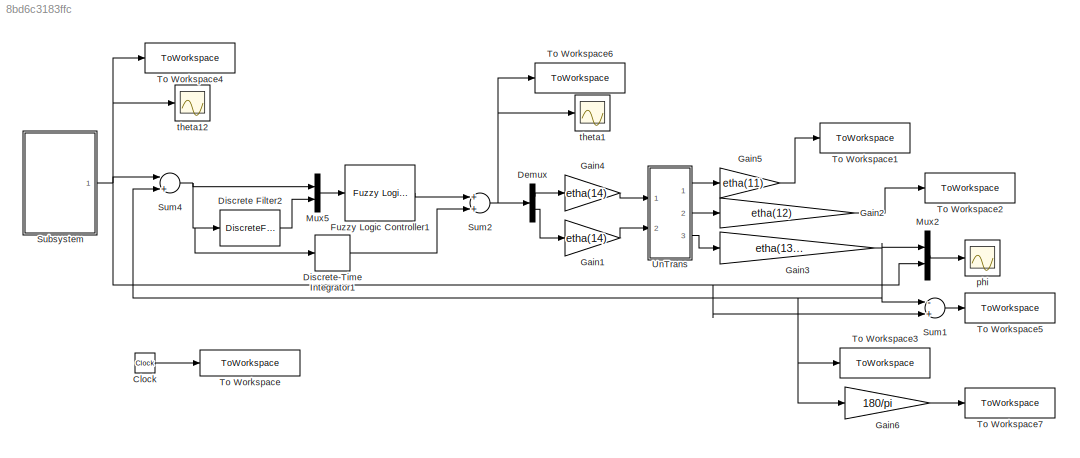
MODEL slx_8bd6c3183ffc
KIND model
CONFIG AbsTol = auto
CONFIG EnableMultiTasking = off
CONFIG FixedStep = auto
CONFIG MaxStep = auto
CONFIG MinStep = auto
CONFIG RelTol = 1e-3
CONFIG SampleTimeConstraint = Unconstrained
CONFIG Solver = VariableStepAuto
CONFIG SolverName = VariableStepAuto
CONFIG StartTime = 0.0
CONFIG StopTime = 28
BLOCK [Clock] Clock
BLOCK [Demux] Demux
  DisplayOption = bar
  Outputs = 2
  Ports = [1, 2]
BLOCK [DiscreteFilter] Discrete Filter2
  Denominator = [1 0]
  InputPortMap = u0
  Numerator = [1 -1]
  Ports = [1, 1]
BLOCK [DiscreteIntegrator] Discrete-Time Integrator1
  ICPrevOutput = DiscIntNeverNeededParam
  ICPrevScaledInput = DiscIntNeverNeededParam
  InitialConditionSetting = Auto
  Ports = [1, 1]
  SampleTime = Ts
  gainval = delta_phi(9)
BLOCK [Reference] Fuzzy Logic Controller1  REF=fuzblock/Fuzzy Logic   (lib defined in mdl_858b3b3e7478)
Controller
  Ports = [1, 1]
  SourceBlock = fuzblock/Fuzzy Logic \nController
  SourceProductBaseCode = FL
  SourceProductName = Fuzzy Logic Toolbox
  SourceType = Fuzzy Inference System
BLOCK [Gain] Gain1
  Gain = etha(14)
  OutDataTypeStr = Inherit: Inherit via internal rule
  ParamDataTypeStr = Inherit: Inherit via internal rule
  SaturateOnIntegerOverflow = off
BLOCK [Gain] Gain2
  Gain = etha(12)
  OutDataTypeStr = Inherit: Inherit via internal rule
  ParamDataTypeStr = Inherit: Inherit via internal rule
  SaturateOnIntegerOverflow = off
BLOCK [Gain] Gain3
  Gain = etha(13)*delta_phi(6)
  OutDataTypeStr = Inherit: Inherit via internal rule
  ParamDataTypeStr = Inherit: Inherit via internal rule
  SaturateOnIntegerOverflow = off
BLOCK [Gain] Gain4
  Gain = etha(14)
  OutDataTypeStr = Inherit: Inherit via internal rule
  ParamDataTypeStr = Inherit: Inherit via internal rule
  SaturateOnIntegerOverflow = off
BLOCK [Gain] Gain5
  Gain = etha(11)
  OutDataTypeStr = Inherit: Inherit via internal rule
  ParamDataTypeStr = Inherit: Inherit via internal rule
  SaturateOnIntegerOverflow = off
BLOCK [Gain] Gain6
  Gain = 180/pi
  OutDataTypeStr = Inherit: Inherit via internal rule
  ParamDataTypeStr = Inherit: Inherit via internal rule
  SaturateOnIntegerOverflow = off
BLOCK [Mux] Mux2
  DisplayOption = bar
  Inputs = 2
  Ports = [2, 1]
BLOCK [Mux] Mux5
  DisplayOption = bar
  Inputs = 2
  Ports = [2, 1]
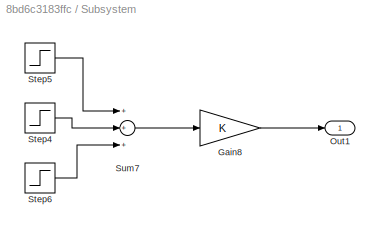
BLOCK [SubSystem] Subsystem
  Ports = [0, 1]
  RequestExecContextInheritance = off
BLOCK [Gain] Subsystem/Gain8
  OutDataTypeStr = Inherit: Inherit via internal rule
  ParamDataTypeStr = Inherit: Inherit via internal rule
  SaturateOnIntegerOverflow = off
BLOCK [Outport] Subsystem/Out1
  IconDisplay = Port number
  VectorParamsAs1DForOutWhenUnconnected = on
BLOCK [Step] Subsystem/Step4
  After = -1*pi/180
  SampleTime = 0
  Time = 10
BLOCK [Step] Subsystem/Step5
  After = 1*pi/180
  SampleTime = 0
  Time = 0
BLOCK [Step] Subsystem/Step6
  After = 1*pi/180
  SampleTime = 0
  Time = 20
BLOCK [Sum] Subsystem/Sum7
  InputSameDT = off
  Inputs = +++
  OutDataTypeStr = Inherit: Inherit via internal rule
  Ports = [3, 1]
  SaturateOnIntegerOverflow = off
BLOCK [Sum] Sum1
  InputSameDT = off
  Inputs = -+
  OutDataTypeStr = Inherit: Inherit via internal rule
  Ports = [2, 1]
  SaturateOnIntegerOverflow = off
BLOCK [Sum] Sum2
  InputSameDT = off
  OutDataTypeStr = Inherit: Inherit via internal rule
  Ports = [2, 1]
  SaturateOnIntegerOverflow = off
BLOCK [Sum] Sum4
  InputSameDT = off
  Inputs = |+-
  OutDataTypeStr = Inherit: Inherit via internal rule
  Ports = [2, 1]
  SaturateOnIntegerOverflow = off
BLOCK [ToWorkspace] To Workspace
  FixptAsFi = on
  MaxDataPoints = inf
  Ports = [1]
  SampleTime = Ts
  Save2DSignal = 2-D array (concatenate along first dimension)
  VariableName = t_phi_staircase
BLOCK [ToWorkspace] To Workspace1
  FixptAsFi = on
  MaxDataPoints = inf
  Ports = [1]
  SampleTime = Ts
  Save2DSignal = 2-D array (concatenate along first dimension)
  VariableName = theta_staircase
BLOCK [ToWorkspace] To Workspace2
  FixptAsFi = on
  MaxDataPoints = inf
  Ports = [1]
  SampleTime = Ts
  Save2DSignal = 2-D array (concatenate along first dimension)
  VariableName = psi_staircase
BLOCK [ToWorkspace] To Workspace3
  FixptAsFi = on
  MaxDataPoints = inf
  Ports = [1]
  SampleTime = Ts
  Save2DSignal = 2-D array (concatenate along first dimension)
  VariableName = phi_staircase
BLOCK [ToWorkspace] To Workspace4
  FixptAsFi = on
  MaxDataPoints = inf
  Ports = [1]
  SampleTime = Ts
  Save2DSignal = 2-D array (concatenate along first dimension)
  VariableName = ref_phi_staircase
BLOCK [ToWorkspace] To Workspace5
  FixptAsFi = on
  MaxDataPoints = inf
  Ports = [1]
  SampleTime = Ts
  Save2DSignal = 2-D array (concatenate along first dimension)
  VariableName = e_phi_staircase
BLOCK [ToWorkspace] To Workspace6
  FixptAsFi = on
  MaxDataPoints = inf
  Ports = [1]
  SampleTime = Ts
  Save2DSignal = 2-D array (concatenate along first dimension)
  VariableName = urc_ulc_phi_staircase
BLOCK [ToWorkspace] To Workspace7
  FixptAsFi = on
  MaxDataPoints = inf
  Ports = [1]
  SampleTime = Ts
  Save2DSignal = 2-D array (concatenate along first dimension)
  VariableName = phi_staircase_deg
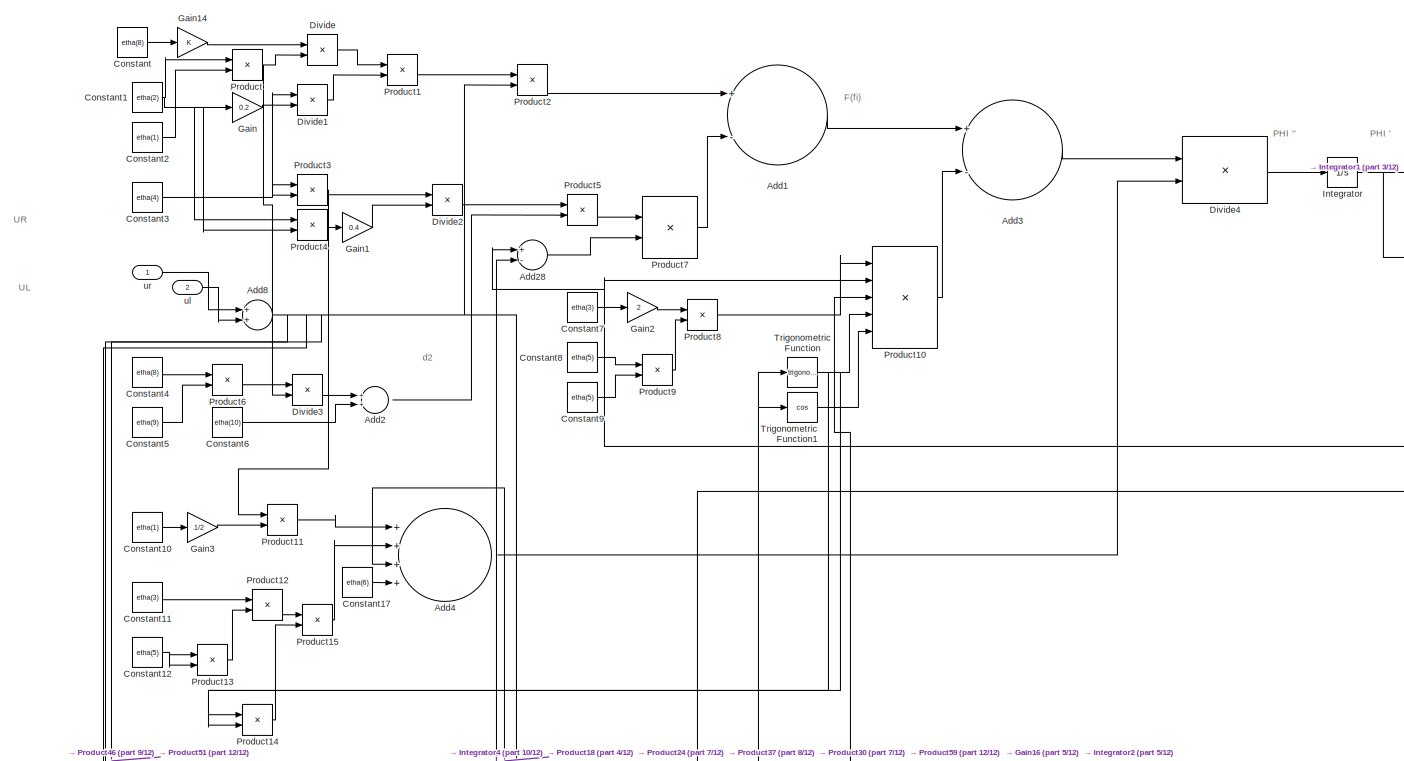
[diagram: UnTrans - part 1/12, top left region]
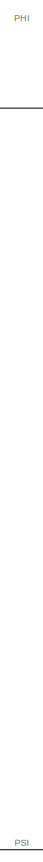
[diagram: UnTrans - part 2/12, top right region]
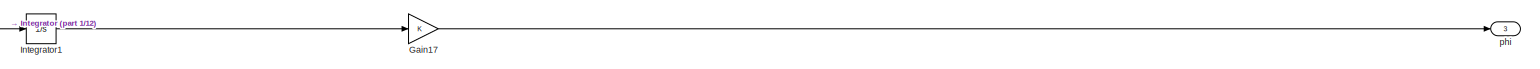
[diagram: UnTrans - part 3/12, top right region]
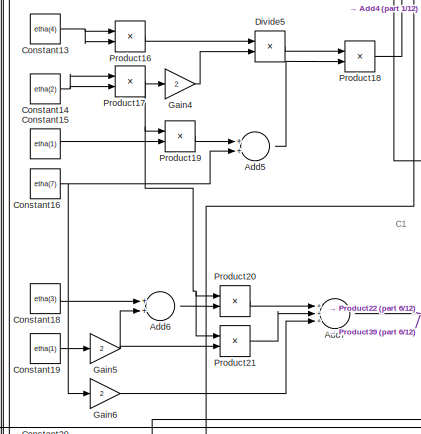
[diagram: UnTrans - part 4/12, top left region]
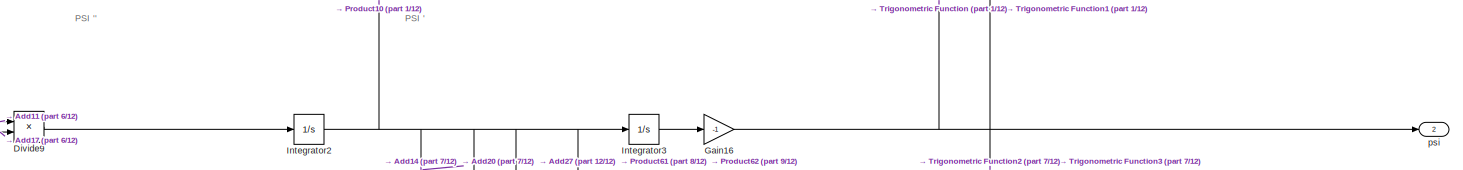
[diagram: UnTrans - part 5/12, top right region]
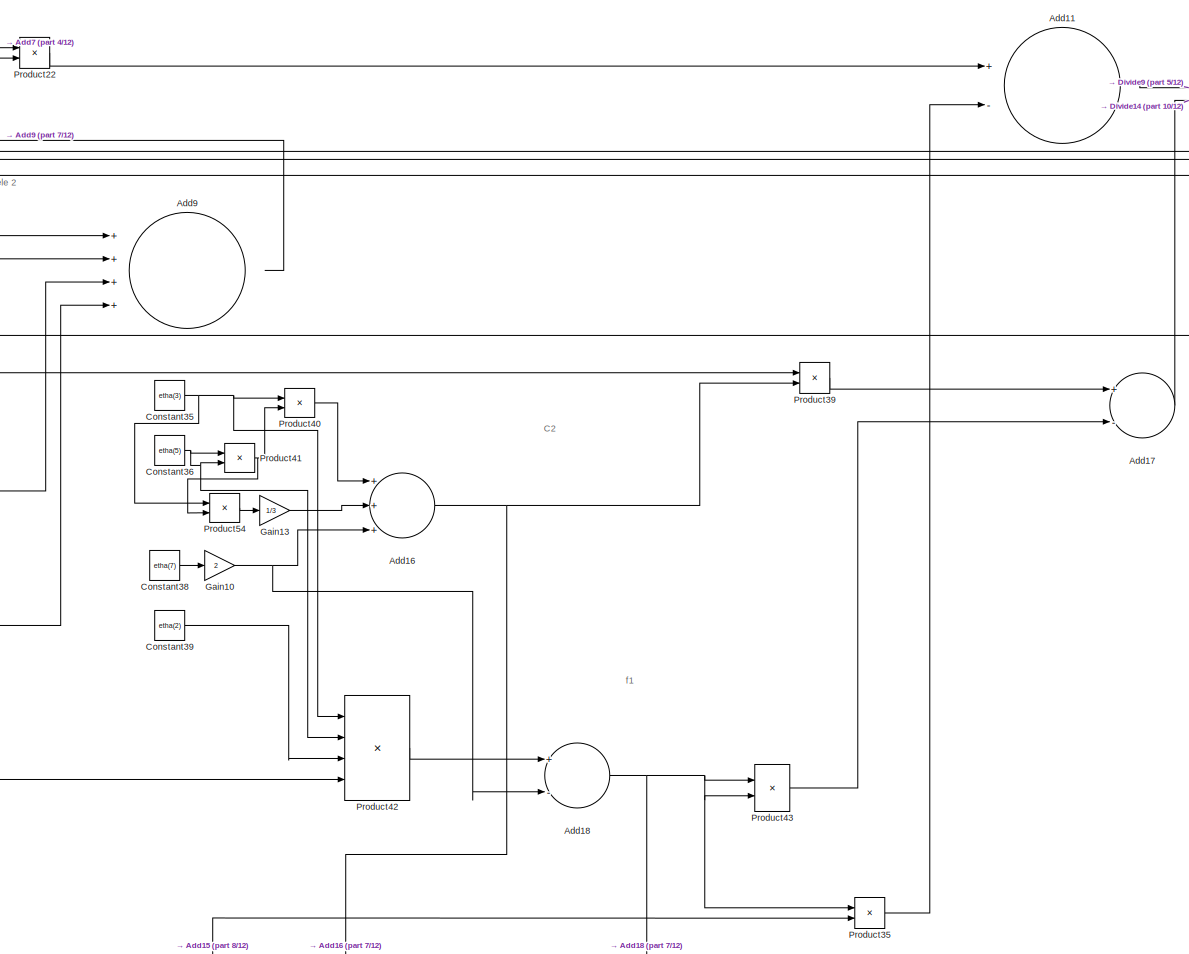
[diagram: UnTrans - part 6/12, middle left region]
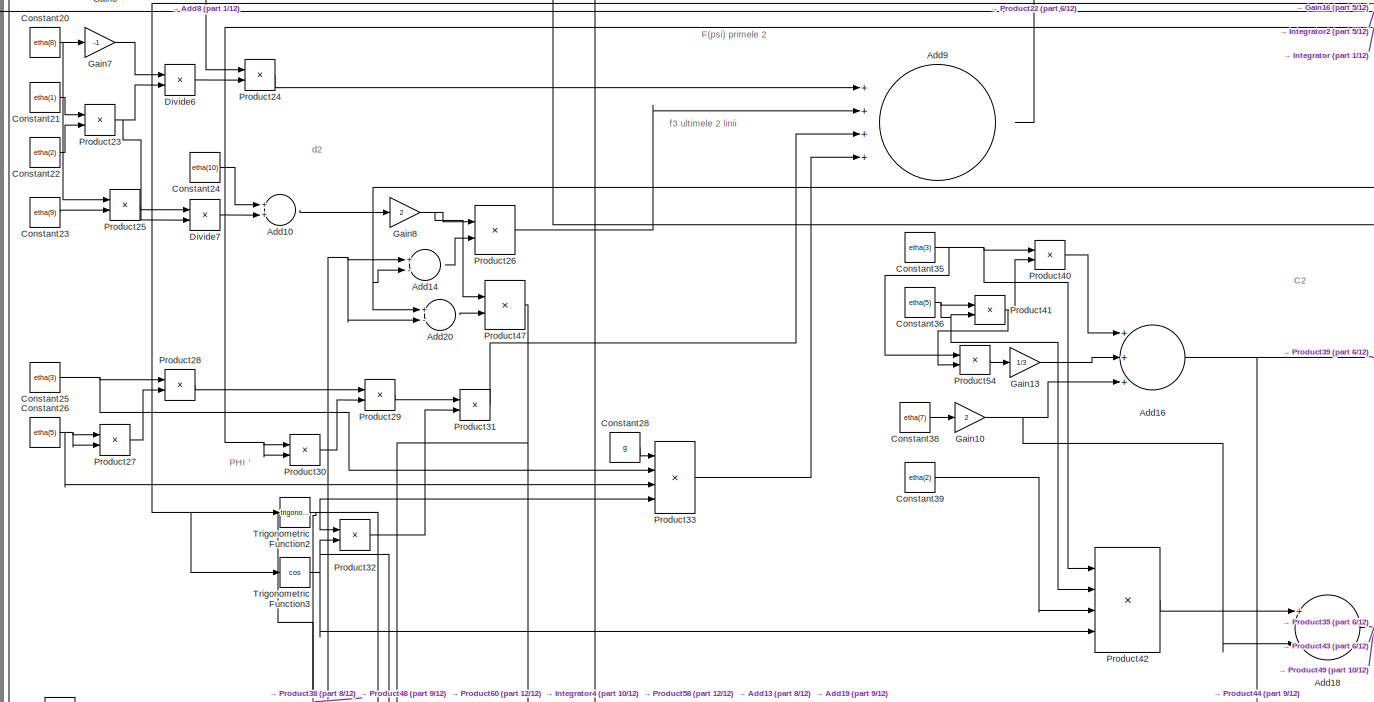
[diagram: UnTrans - part 7/12, middle left region]
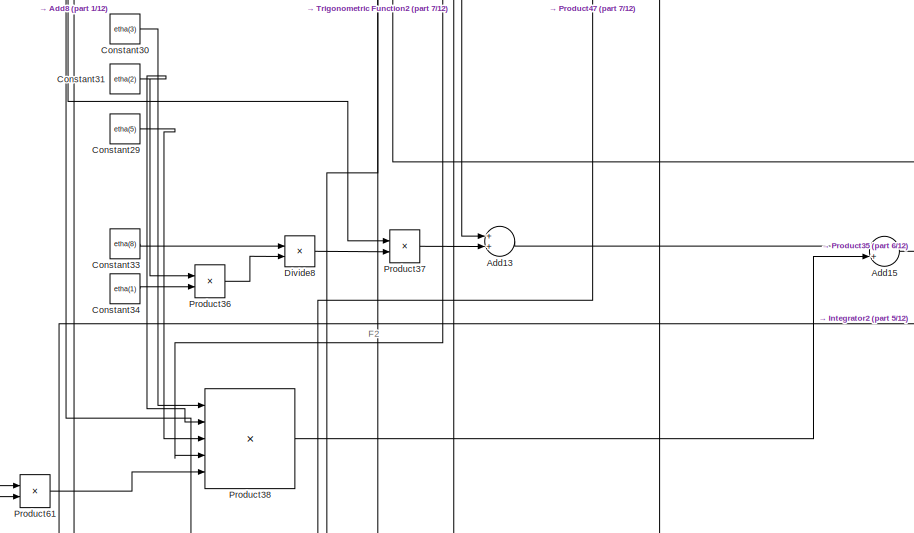
[diagram: UnTrans - part 8/12, middle left region]
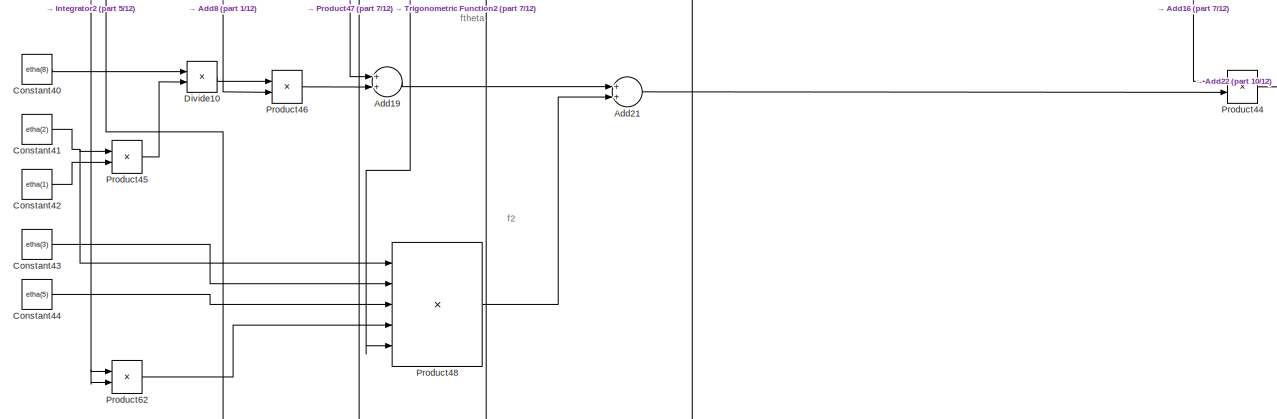
[diagram: UnTrans - part 9/12, bottom left region]
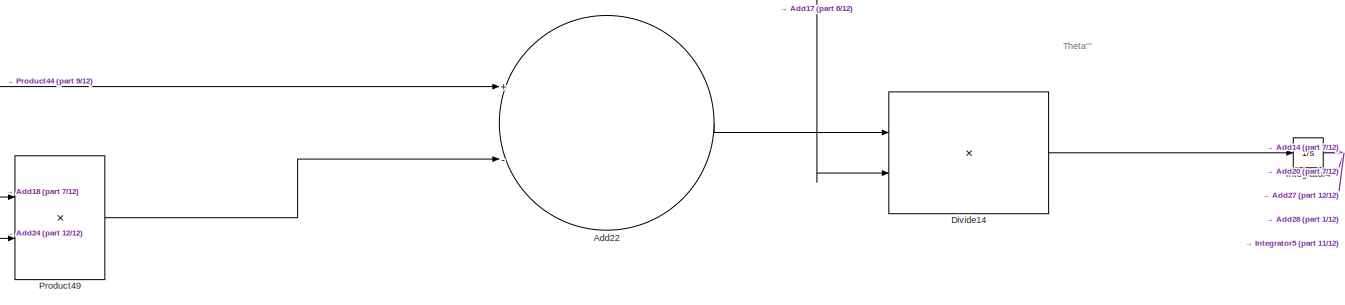
[diagram: UnTrans - part 10/12, bottom right region]
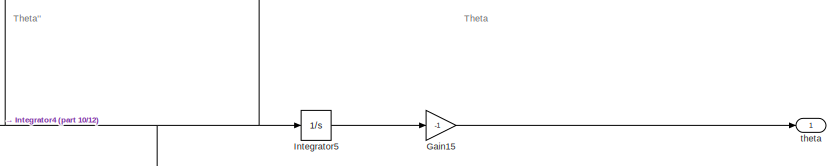
[diagram: UnTrans - part 11/12, bottom right region]
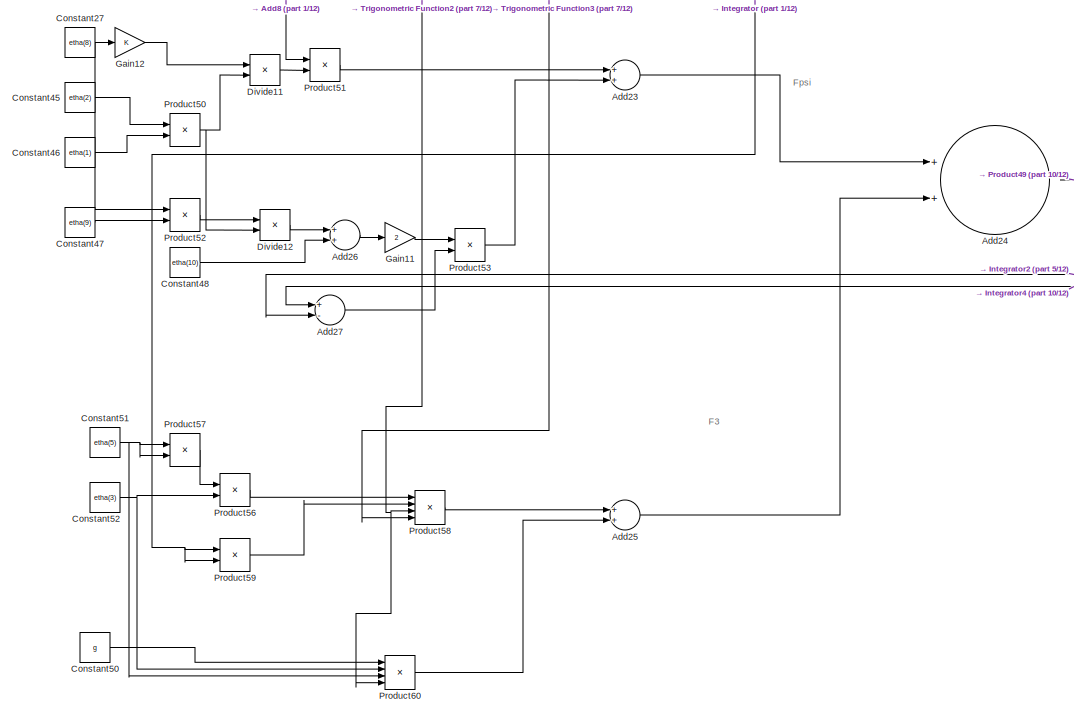
[diagram: UnTrans - part 12/12, bottom left region]
BLOCK [SubSystem] UnTrans
  Ports = [2, 3]
  RequestExecContextInheritance = off
BLOCK [Sum] UnTrans/Add1
  InputSameDT = off
  Inputs = +-
  OutDataTypeStr = Inherit: Inherit via internal rule
  Ports = [2, 1]
  SaturateOnIntegerOverflow = off
BLOCK [Sum] UnTrans/Add10
  InputSameDT = off
  OutDataTypeStr = Inherit: Inherit via internal rule
  Ports = [2, 1]
  SaturateOnIntegerOverflow = off
BLOCK [Sum] UnTrans/Add11
  InputSameDT = off
  Inputs = +-
  OutDataTypeStr = Inherit: Inherit via internal rule
  Ports = [2, 1]
  SaturateOnIntegerOverflow = off
BLOCK [Sum] UnTrans/Add13
  InputSameDT = off
  OutDataTypeStr = Inherit: Inherit via internal rule
  Ports = [2, 1]
  SaturateOnIntegerOverflow = off
BLOCK [Sum] UnTrans/Add14
  InputSameDT = off
  Inputs = +-
  OutDataTypeStr = Inherit: Inherit via internal rule
  Ports = [2, 1]
  SaturateOnIntegerOverflow = off
BLOCK [Sum] UnTrans/Add15
  InputSameDT = off
  OutDataTypeStr = Inherit: Inherit via internal rule
  Ports = [2, 1]
  SaturateOnIntegerOverflow = off
BLOCK [Sum] UnTrans/Add16
  InputSameDT = off
  Inputs = +++
  OutDataTypeStr = Inherit: Inherit via internal rule
  Ports = [3, 1]
  SaturateOnIntegerOverflow = off
BLOCK [Sum] UnTrans/Add17
  InputSameDT = off
  Inputs = +-
  OutDataTypeStr = Inherit: Inherit via internal rule
  Ports = [2, 1]
  SaturateOnIntegerOverflow = off
BLOCK [Sum] UnTrans/Add18
  InputSameDT = off
  Inputs = +-
  OutDataTypeStr = Inherit: Inherit via internal rule
  Ports = [2, 1]
  SaturateOnIntegerOverflow = off
BLOCK [Sum] UnTrans/Add19
  InputSameDT = off
  OutDataTypeStr = Inherit: Inherit via internal rule
  Ports = [2, 1]
  SaturateOnIntegerOverflow = off
BLOCK [Sum] UnTrans/Add2
  InputSameDT = off
  OutDataTypeStr = Inherit: Inherit via internal rule
  Ports = [2, 1]
  SaturateOnIntegerOverflow = off
BLOCK [Sum] UnTrans/Add20
  InputSameDT = off
  Inputs = +-
  OutDataTypeStr = Inherit: Inherit via internal rule
  Ports = [2, 1]
  SaturateOnIntegerOverflow = off
BLOCK [Sum] UnTrans/Add21
  InputSameDT = off
  OutDataTypeStr = Inherit: Inherit via internal rule
  Ports = [2, 1]
  SaturateOnIntegerOverflow = off
BLOCK [Sum] UnTrans/Add22
  InputSameDT = off
  Inputs = +-
  OutDataTypeStr = Inherit: Inherit via internal rule
  Ports = [2, 1]
  SaturateOnIntegerOverflow = off
BLOCK [Sum] UnTrans/Add23
  InputSameDT = off
  OutDataTypeStr = Inherit: Inherit via internal rule
  Ports = [2, 1]
  SaturateOnIntegerOverflow = off
BLOCK [Sum] UnTrans/Add24
  InputSameDT = off
  OutDataTypeStr = Inherit: Inherit via internal rule
  Ports = [2, 1]
  SaturateOnIntegerOverflow = off
BLOCK [Sum] UnTrans/Add25
  InputSameDT = off
  OutDataTypeStr = Inherit: Inherit via internal rule
  Ports = [2, 1]
  SaturateOnIntegerOverflow = off
BLOCK [Sum] UnTrans/Add26
  InputSameDT = off
  OutDataTypeStr = Inherit: Inherit via internal rule
  Ports = [2, 1]
  SaturateOnIntegerOverflow = off
BLOCK [Sum] UnTrans/Add27
  InputSameDT = off
  Inputs = +-
  OutDataTypeStr = Inherit: Inherit via internal rule
  Ports = [2, 1]
  SaturateOnIntegerOverflow = off
BLOCK [Sum] UnTrans/Add28
  InputSameDT = off
  Inputs = +-
  OutDataTypeStr = Inherit: Inherit via internal rule
  Ports = [2, 1]
  SaturateOnIntegerOverflow = off
BLOCK [Sum] UnTrans/Add3
  InputSameDT = off
  Inputs = +-
  OutDataTypeStr = Inherit: Inherit via internal rule
  Ports = [2, 1]
  SaturateOnIntegerOverflow = off
BLOCK [Sum] UnTrans/Add4
  InputSameDT = off
  Inputs = ++++
  OutDataTypeStr = Inherit: Inherit via internal rule
  Ports = [4, 1]
  SaturateOnIntegerOverflow = off
BLOCK [Sum] UnTrans/Add5
  InputSameDT = off
  OutDataTypeStr = Inherit: Inherit via internal rule
  Ports = [2, 1]
  SaturateOnIntegerOverflow = off
BLOCK [Sum] UnTrans/Add6
  InputSameDT = off
  OutDataTypeStr = Inherit: Inherit via internal rule
  Ports = [2, 1]
  SaturateOnIntegerOverflow = off
BLOCK [Sum] UnTrans/Add7
  InputSameDT = off
  Inputs = +++
  OutDataTypeStr = Inherit: Inherit via internal rule
  Ports = [3, 1]
  SaturateOnIntegerOverflow = off
BLOCK [Sum] UnTrans/Add8
  InputSameDT = off
  OutDataTypeStr = Inherit: Inherit via internal rule
  Ports = [2, 1]
  SaturateOnIntegerOverflow = off
BLOCK [Sum] UnTrans/Add9
  InputSameDT = off
  Inputs = ++++
  OutDataTypeStr = Inherit: Inherit via internal rule
  Ports = [4, 1]
  SaturateOnIntegerOverflow = off
BLOCK [Constant] UnTrans/Constant
  Value = etha(8)
BLOCK [Constant] UnTrans/Constant1
  Value = etha(2)
BLOCK [Constant] UnTrans/Constant10
  Value = etha(1)
BLOCK [Constant] UnTrans/Constant11
  Value = etha(3)
BLOCK [Constant] UnTrans/Constant12
  Value = etha(5)
BLOCK [Constant] UnTrans/Constant13
  Value = etha(4)
BLOCK [Constant] UnTrans/Constant14
  Value = etha(2)
BLOCK [Constant] UnTrans/Constant15
  Value = etha(1)
BLOCK [Constant] UnTrans/Constant16
  Value = etha(7)
BLOCK [Constant] UnTrans/Constant17
  Value = etha(6)
BLOCK [Constant] UnTrans/Constant18
  Value = etha(3)
BLOCK [Constant] UnTrans/Constant19
  Value = etha(1)
BLOCK [Constant] UnTrans/Constant2
  Value = etha(1)
BLOCK [Constant] UnTrans/Constant20
  Value = etha(8)
BLOCK [Constant] UnTrans/Constant21
  Value = etha(1)
BLOCK [Constant] UnTrans/Constant22
  Value = etha(2)
BLOCK [Constant] UnTrans/Constant23
  Value = etha(9)
BLOCK [Constant] UnTrans/Constant24
  Value = etha(10)
BLOCK [Constant] UnTrans/Constant25
  Value = etha(3)
BLOCK [Constant] UnTrans/Constant26
  Value = etha(5)
BLOCK [Constant] UnTrans/Constant27
  Value = etha(8)
BLOCK [Constant] UnTrans/Constant28
  Value = g
BLOCK [Constant] UnTrans/Constant29
  Value = etha(5)
BLOCK [Constant] UnTrans/Constant3
  Value = etha(4)
BLOCK [Constant] UnTrans/Constant30
  Value = etha(3)
BLOCK [Constant] UnTrans/Constant31
  Value = etha(2)
BLOCK [Constant] UnTrans/Constant33
  Value = etha(8)
BLOCK [Constant] UnTrans/Constant34
  Value = etha(1)
BLOCK [Constant] UnTrans/Constant35
  Value = etha(3)
BLOCK [Constant] UnTrans/Constant36
  Value = etha(5)
BLOCK [Constant] UnTrans/Constant38
  Value = etha(7)
BLOCK [Constant] UnTrans/Constant39
  Value = etha(2)
BLOCK [Constant] UnTrans/Constant4
  Value = etha(8)
BLOCK [Constant] UnTrans/Constant40
  Value = etha(8)
BLOCK [Constant] UnTrans/Constant41
  Value = etha(2)
BLOCK [Constant] UnTrans/Constant42
  Value = etha(1)
BLOCK [Constant] UnTrans/Constant43
  Value = etha(3)
BLOCK [Constant] UnTrans/Constant44
  Value = etha(5)
BLOCK [Constant] UnTrans/Constant45
  Value = etha(2)
BLOCK [Constant] UnTrans/Constant46
  Value = etha(1)
BLOCK [Constant] UnTrans/Constant47
  Value = etha(9)
BLOCK [Constant] UnTrans/Constant48
  Value = etha(10)
BLOCK [Constant] UnTrans/Constant5
  Value = etha(9)
BLOCK [Constant] UnTrans/Constant50
  Value = g
BLOCK [Constant] UnTrans/Constant51
  Value = etha(5)
BLOCK [Constant] UnTrans/Constant52
  Value = etha(3)
BLOCK [Constant] UnTrans/Constant6
  Value = etha(10)
BLOCK [Constant] UnTrans/Constant7
  Value = etha(3)
BLOCK [Constant] UnTrans/Constant8
  Value = etha(5)
BLOCK [Constant] UnTrans/Constant9
  Value = etha(5)
BLOCK [Product] UnTrans/Divide
  InputSameDT = off
  Inputs = */
  OutDataTypeStr = Inherit: Inherit via internal rule
  Ports = [2, 1]
  RndMeth = Floor
  SaturateOnIntegerOverflow = off
BLOCK [Product] UnTrans/Divide1
  InputSameDT = off
  Inputs = */
  OutDataTypeStr = Inherit: Inherit via internal rule
  Ports = [2, 1]
  RndMeth = Floor
  SaturateOnIntegerOverflow = off
BLOCK [Product] UnTrans/Divide10
  InputSameDT = off
  Inputs = */
  OutDataTypeStr = Inherit: Inherit via internal rule
  Ports = [2, 1]
  RndMeth = Floor
  SaturateOnIntegerOverflow = off
BLOCK [Product] UnTrans/Divide11
  InputSameDT = off
  Inputs = */
  OutDataTypeStr = Inherit: Inherit via internal rule
  Ports = [2, 1]
  RndMeth = Floor
  SaturateOnIntegerOverflow = off
BLOCK [Product] UnTrans/Divide12
  InputSameDT = off
  Inputs = */
  OutDataTypeStr = Inherit: Inherit via internal rule
  Ports = [2, 1]
  RndMeth = Floor
  SaturateOnIntegerOverflow = off
BLOCK [Product] UnTrans/Divide14
  InputSameDT = off
  Inputs = */
  OutDataTypeStr = Inherit: Inherit via internal rule
  Ports = [2, 1]
  RndMeth = Floor
  SaturateOnIntegerOverflow = off
BLOCK [Product] UnTrans/Divide2
  InputSameDT = off
  Inputs = */
  OutDataTypeStr = Inherit: Inherit via internal rule
  Ports = [2, 1]
  RndMeth = Floor
  SaturateOnIntegerOverflow = off
BLOCK [Product] UnTrans/Divide3
  InputSameDT = off
  Inputs = */
  OutDataTypeStr = Inherit: Inherit via internal rule
  Ports = [2, 1]
  RndMeth = Floor
  SaturateOnIntegerOverflow = off
BLOCK [Product] UnTrans/Divide4
  InputSameDT = off
  Inputs = */
  OutDataTypeStr = Inherit: Inherit via internal rule
  Ports = [2, 1]
  RndMeth = Floor
  SaturateOnIntegerOverflow = off
BLOCK [Product] UnTrans/Divide5
  InputSameDT = off
  Inputs = */
  OutDataTypeStr = Inherit: Inherit via internal rule
  Ports = [2, 1]
  RndMeth = Floor
  SaturateOnIntegerOverflow = off
BLOCK [Product] UnTrans/Divide6
  InputSameDT = off
  Inputs = */
  OutDataTypeStr = Inherit: Inherit via internal rule
  Ports = [2, 1]
  RndMeth = Floor
  SaturateOnIntegerOverflow = off
BLOCK [Product] UnTrans/Divide7
  InputSameDT = off
  Inputs = */
  OutDataTypeStr = Inherit: Inherit via internal rule
  Ports = [2, 1]
  RndMeth = Floor
  SaturateOnIntegerOverflow = off
BLOCK [Product] UnTrans/Divide8
  InputSameDT = off
  Inputs = */
  OutDataTypeStr = Inherit: Inherit via internal rule
  Ports = [2, 1]
  RndMeth = Floor
  SaturateOnIntegerOverflow = off
BLOCK [Product] UnTrans/Divide9
  InputSameDT = off
  Inputs = */
  OutDataTypeStr = Inherit: Inherit via internal rule
  Ports = [2, 1]
  RndMeth = Floor
  SaturateOnIntegerOverflow = off
BLOCK [Gain] UnTrans/Gain
  Gain = 0.2
  OutDataTypeStr = Inherit: Inherit via internal rule
  ParamDataTypeStr = Inherit: Inherit via internal rule
  SaturateOnIntegerOverflow = off
BLOCK [Gain] UnTrans/Gain1
  Gain = 0.4
  OutDataTypeStr = Inherit: Inherit via internal rule
  ParamDataTypeStr = Inherit: Inherit via internal rule
  SaturateOnIntegerOverflow = off
BLOCK [Gain] UnTrans/Gain10
  Gain = 2
  OutDataTypeStr = Inherit: Inherit via internal rule
  ParamDataTypeStr = Inherit: Inherit via internal rule
  SaturateOnIntegerOverflow = off
BLOCK [Gain] UnTrans/Gain11
  Gain = 2
  OutDataTypeStr = Inherit: Inherit via internal rule
  ParamDataTypeStr = Inherit: Inherit via internal rule
  SaturateOnIntegerOverflow = off
BLOCK [Gain] UnTrans/Gain12
  OutDataTypeStr = Inherit: Inherit via internal rule
  ParamDataTypeStr = Inherit: Inherit via internal rule
  SaturateOnIntegerOverflow = off
BLOCK [Gain] UnTrans/Gain13
  Gain = 1/3
  OutDataTypeStr = Inherit: Inherit via internal rule
  ParamDataTypeStr = Inherit: Inherit via internal rule
  SaturateOnIntegerOverflow = off
BLOCK [Gain] UnTrans/Gain14
  OutDataTypeStr = Inherit: Inherit via internal rule
  ParamDataTypeStr = Inherit: Inherit via internal rule
  SaturateOnIntegerOverflow = off
BLOCK [Gain] UnTrans/Gain15
  Gain = -1
  OutDataTypeStr = Inherit: Inherit via internal rule
  ParamDataTypeStr = Inherit: Inherit via internal rule
  SaturateOnIntegerOverflow = off
BLOCK [Gain] UnTrans/Gain16
  Gain = -1
  OutDataTypeStr = Inherit: Inherit via internal rule
  ParamDataTypeStr = Inherit: Inherit via internal rule
  SaturateOnIntegerOverflow = off
BLOCK [Gain] UnTrans/Gain17
  OutDataTypeStr = Inherit: Inherit via internal rule
  ParamDataTypeStr = Inherit: Inherit via internal rule
  SaturateOnIntegerOverflow = off
BLOCK [Gain] UnTrans/Gain2
  Gain = 2
  OutDataTypeStr = Inherit: Inherit via internal rule
  ParamDataTypeStr = Inherit: Inherit via internal rule
  SaturateOnIntegerOverflow = off
BLOCK [Gain] UnTrans/Gain3
  Gain = 1/2
  OutDataTypeStr = Inherit: Inherit via internal rule
  ParamDataTypeStr = Inherit: Inherit via internal rule
  SaturateOnIntegerOverflow = off
BLOCK [Gain] UnTrans/Gain4
  Gain = 2
  OutDataTypeStr = Inherit: Inherit via internal rule
  ParamDataTypeStr = Inherit: Inherit via internal rule
  SaturateOnIntegerOverflow = off
BLOCK [Gain] UnTrans/Gain5
  Gain = 2
  OutDataTypeStr = Inherit: Inherit via internal rule
  ParamDataTypeStr = Inherit: Inherit via internal rule
  SaturateOnIntegerOverflow = off
BLOCK [Gain] UnTrans/Gain6
  Gain = 2
  OutDataTypeStr = Inherit: Inherit via internal rule
  ParamDataTypeStr = Inherit: Inherit via internal rule
  SaturateOnIntegerOverflow = off
BLOCK [Gain] UnTrans/Gain7
  Gain = -1
  OutDataTypeStr = Inherit: Inherit via internal rule
  ParamDataTypeStr = Inherit: Inherit via internal rule
  SaturateOnIntegerOverflow = off
BLOCK [Gain] UnTrans/Gain8
  Gain = 2
  OutDataTypeStr = Inherit: Inherit via internal rule
  ParamDataTypeStr = Inherit: Inherit via internal rule
  SaturateOnIntegerOverflow = off
BLOCK [Integrator] UnTrans/Integrator
  Ports = [1, 1]
BLOCK [Integrator] UnTrans/Integrator1
  Ports = [1, 1]
BLOCK [Integrator] UnTrans/Integrator2
  Ports = [1, 1]
BLOCK [Integrator] UnTrans/Integrator3
  Ports = [1, 1]
BLOCK [Integrator] UnTrans/Integrator4
  Ports = [1, 1]
BLOCK [Integrator] UnTrans/Integrator5
  Ports = [1, 1]
BLOCK [Product] UnTrans/Product
  InputSameDT = off
  OutDataTypeStr = Inherit: Inherit via internal rule
  Ports = [2, 1]
  RndMeth = Floor
  SaturateOnIntegerOverflow = off
BLOCK [Product] UnTrans/Product1
  InputSameDT = off
  OutDataTypeStr = Inherit: Inherit via internal rule
  Ports = [2, 1]
  RndMeth = Floor
  SaturateOnIntegerOverflow = off
BLOCK [Product] UnTrans/Product10
  InputSameDT = off
  Inputs = 5
  OutDataTypeStr = Inherit: Inherit via internal rule
  Ports = [5, 1]
  RndMeth = Floor
  SaturateOnIntegerOverflow = off
BLOCK [Product] UnTrans/Product11
  InputSameDT = off
  OutDataTypeStr = Inherit: Inherit via internal rule
  Ports = [2, 1]
  RndMeth = Floor
  SaturateOnIntegerOverflow = off
BLOCK [Product] UnTrans/Product12
  InputSameDT = off
  OutDataTypeStr = Inherit: Inherit via internal rule
  Ports = [2, 1]
  RndMeth = Floor
  SaturateOnIntegerOverflow = off
BLOCK [Product] UnTrans/Product13
  InputSameDT = off
  OutDataTypeStr = Inherit: Inherit via internal rule
  Ports = [2, 1]
  RndMeth = Floor
  SaturateOnIntegerOverflow = off
BLOCK [Product] UnTrans/Product14
  InputSameDT = off
  OutDataTypeStr = Inherit: Inherit via internal rule
  Ports = [2, 1]
  RndMeth = Floor
  SaturateOnIntegerOverflow = off
BLOCK [Product] UnTrans/Product15
  InputSameDT = off
  OutDataTypeStr = Inherit: Inherit via internal rule
  Ports = [2, 1]
  RndMeth = Floor
  SaturateOnIntegerOverflow = off
BLOCK [Product] UnTrans/Product16
  InputSameDT = off
  OutDataTypeStr = Inherit: Inherit via internal rule
  Ports = [2, 1]
  RndMeth = Floor
  SaturateOnIntegerOverflow = off
BLOCK [Product] UnTrans/Product17
  InputSameDT = off
  OutDataTypeStr = Inherit: Inherit via internal rule
  Ports = [2, 1]
  RndMeth = Floor
  SaturateOnIntegerOverflow = off
BLOCK [Product] UnTrans/Product18
  InputSameDT = off
  OutDataTypeStr = Inherit: Inherit via internal rule
  Ports = [2, 1]
  RndMeth = Floor
  SaturateOnIntegerOverflow = off
BLOCK [Product] UnTrans/Product19
  InputSameDT = off
  OutDataTypeStr = Inherit: Inherit via internal rule
  Ports = [2, 1]
  RndMeth = Floor
  SaturateOnIntegerOverflow = off
BLOCK [Product] UnTrans/Product2
  InputSameDT = off
  OutDataTypeStr = Inherit: Inherit via internal rule
  Ports = [2, 1]
  RndMeth = Floor
  SaturateOnIntegerOverflow = off
BLOCK [Product] UnTrans/Product20
  InputSameDT = off
  OutDataTypeStr = Inherit: Inherit via internal rule
  Ports = [2, 1]
  RndMeth = Floor
  SaturateOnIntegerOverflow = off
BLOCK [Product] UnTrans/Product21
  InputSameDT = off
  OutDataTypeStr = Inherit: Inherit via internal rule
  Ports = [2, 1]
  RndMeth = Floor
  SaturateOnIntegerOverflow = off
BLOCK [Product] UnTrans/Product22
  InputSameDT = off
  OutDataTypeStr = Inherit: Inherit via internal rule
  Ports = [2, 1]
  RndMeth = Floor
  SaturateOnIntegerOverflow = off
BLOCK [Product] UnTrans/Product23
  InputSameDT = off
  OutDataTypeStr = Inherit: Inherit via internal rule
  Ports = [2, 1]
  RndMeth = Floor
  SaturateOnIntegerOverflow = off
BLOCK [Product] UnTrans/Product24
  InputSameDT = off
  OutDataTypeStr = Inherit: Inherit via internal rule
  Ports = [2, 1]
  RndMeth = Floor
  SaturateOnIntegerOverflow = off
BLOCK [Product] UnTrans/Product25
  InputSameDT = off
  OutDataTypeStr = Inherit: Inherit via internal rule
  Ports = [2, 1]
  RndMeth = Floor
  SaturateOnIntegerOverflow = off
BLOCK [Product] UnTrans/Product26
  InputSameDT = off
  OutDataTypeStr = Inherit: Inherit via internal rule
  Ports = [2, 1]
  RndMeth = Floor
  SaturateOnIntegerOverflow = off
BLOCK [Product] UnTrans/Product27
  InputSameDT = off
  OutDataTypeStr = Inherit: Inherit via internal rule
  Ports = [2, 1]
  RndMeth = Floor
  SaturateOnIntegerOverflow = off
BLOCK [Product] UnTrans/Product28
  InputSameDT = off
  OutDataTypeStr = Inherit: Inherit via internal rule
  Ports = [2, 1]
  RndMeth = Floor
  SaturateOnIntegerOverflow = off
BLOCK [Product] UnTrans/Product29
  InputSameDT = off
  OutDataTypeStr = Inherit: Inherit via internal rule
  Ports = [2, 1]
  RndMeth = Floor
  SaturateOnIntegerOverflow = off
BLOCK [Product] UnTrans/Product3
  InputSameDT = off
  OutDataTypeStr = Inherit: Inherit via internal rule
  Ports = [2, 1]
  RndMeth = Floor
  SaturateOnIntegerOverflow = off
BLOCK [Product] UnTrans/Product30
  InputSameDT = off
  OutDataTypeStr = Inherit: Inherit via internal rule
  Ports = [2, 1]
  RndMeth = Floor
  SaturateOnIntegerOverflow = off
BLOCK [Product] UnTrans/Product31
  InputSameDT = off
  OutDataTypeStr = Inherit: Inherit via internal rule
  Ports = [2, 1]
  RndMeth = Floor
  SaturateOnIntegerOverflow = off
BLOCK [Product] UnTrans/Product32
  InputSameDT = off
  OutDataTypeStr = Inherit: Inherit via internal rule
  Ports = [2, 1]
  RndMeth = Floor
  SaturateOnIntegerOverflow = off
BLOCK [Product] UnTrans/Product33
  InputSameDT = off
  Inputs = 4
  OutDataTypeStr = Inherit: Inherit via internal rule
  Ports = [4, 1]
  RndMeth = Floor
  SaturateOnIntegerOverflow = off
BLOCK [Product] UnTrans/Product35
  InputSameDT = off
  OutDataTypeStr = Inherit: Inherit via internal rule
  Ports = [2, 1]
  RndMeth = Floor
  SaturateOnIntegerOverflow = off
BLOCK [Product] UnTrans/Product36
  InputSameDT = off
  OutDataTypeStr = Inherit: Inherit via internal rule
  Ports = [2, 1]
  RndMeth = Floor
  SaturateOnIntegerOverflow = off
BLOCK [Product] UnTrans/Product37
  InputSameDT = off
  OutDataTypeStr = Inherit: Inherit via internal rule
  Ports = [2, 1]
  RndMeth = Floor
  SaturateOnIntegerOverflow = off
BLOCK [Product] UnTrans/Product38
  InputSameDT = off
  Inputs = 5
  OutDataTypeStr = Inherit: Inherit via internal rule
  Ports = [5, 1]
  RndMeth = Floor
  SaturateOnIntegerOverflow = off
BLOCK [Product] UnTrans/Product39
  InputSameDT = off
  OutDataTypeStr = Inherit: Inherit via internal rule
  Ports = [2, 1]
  RndMeth = Floor
  SaturateOnIntegerOverflow = off
BLOCK [Product] UnTrans/Product4
  InputSameDT = off
  OutDataTypeStr = Inherit: Inherit via internal rule
  Ports = [2, 1]
  RndMeth = Floor
  SaturateOnIntegerOverflow = off
BLOCK [Product] UnTrans/Product40
  InputSameDT = off
  OutDataTypeStr = Inherit: Inherit via internal rule
  Ports = [2, 1]
  RndMeth = Floor
  SaturateOnIntegerOverflow = off
BLOCK [Product] UnTrans/Product41
  InputSameDT = off
  OutDataTypeStr = Inherit: Inherit via internal rule
  Ports = [2, 1]
  RndMeth = Floor
  SaturateOnIntegerOverflow = off
BLOCK [Product] UnTrans/Product42
  InputSameDT = off
  Inputs = 4
  OutDataTypeStr = Inherit: Inherit via internal rule
  Ports = [4, 1]
  RndMeth = Floor
  SaturateOnIntegerOverflow = off
BLOCK [Product] UnTrans/Product43
  InputSameDT = off
  OutDataTypeStr = Inherit: Inherit via internal rule
  Ports = [2, 1]
  RndMeth = Floor
  SaturateOnIntegerOverflow = off
BLOCK [Product] UnTrans/Product44
  InputSameDT = off
  OutDataTypeStr = Inherit: Inherit via internal rule
  Ports = [2, 1]
  RndMeth = Floor
  SaturateOnIntegerOverflow = off
BLOCK [Product] UnTrans/Product45
  InputSameDT = off
  OutDataTypeStr = Inherit: Inherit via internal rule
  Ports = [2, 1]
  RndMeth = Floor
  SaturateOnIntegerOverflow = off
BLOCK [Product] UnTrans/Product46
  InputSameDT = off
  OutDataTypeStr = Inherit: Inherit via internal rule
  Ports = [2, 1]
  RndMeth = Floor
  SaturateOnIntegerOverflow = off
BLOCK [Product] UnTrans/Product47
  InputSameDT = off
  OutDataTypeStr = Inherit: Inherit via internal rule
  Ports = [2, 1]
  RndMeth = Floor
  SaturateOnIntegerOverflow = off
BLOCK [Product] UnTrans/Product48
  InputSameDT = off
  Inputs = 5
  OutDataTypeStr = Inherit: Inherit via internal rule
  Ports = [5, 1]
  RndMeth = Floor
  SaturateOnIntegerOverflow = off
BLOCK [Product] UnTrans/Product49
  InputSameDT = off
  OutDataTypeStr = Inherit: Inherit via internal rule
  Ports = [2, 1]
  RndMeth = Floor
  SaturateOnIntegerOverflow = off
BLOCK [Product] UnTrans/Product5
  InputSameDT = off
  OutDataTypeStr = Inherit: Inherit via internal rule
  Ports = [2, 1]
  RndMeth = Floor
  SaturateOnIntegerOverflow = off
BLOCK [Product] UnTrans/Product50
  InputSameDT = off
  OutDataTypeStr = Inherit: Inherit via internal rule
  Ports = [2, 1]
  RndMeth = Floor
  SaturateOnIntegerOverflow = off
BLOCK [Product] UnTrans/Product51
  InputSameDT = off
  OutDataTypeStr = Inherit: Inherit via internal rule
  Ports = [2, 1]
  RndMeth = Floor
  SaturateOnIntegerOverflow = off
BLOCK [Product] UnTrans/Product52
  InputSameDT = off
  OutDataTypeStr = Inherit: Inherit via internal rule
  Ports = [2, 1]
  RndMeth = Floor
  SaturateOnIntegerOverflow = off
BLOCK [Product] UnTrans/Product53
  InputSameDT = off
  OutDataTypeStr = Inherit: Inherit via internal rule
  Ports = [2, 1]
  RndMeth = Floor
  SaturateOnIntegerOverflow = off
BLOCK [Product] UnTrans/Product54
  InputSameDT = off
  OutDataTypeStr = Inherit: Inherit via internal rule
  Ports = [2, 1]
  RndMeth = Floor
  SaturateOnIntegerOverflow = off
BLOCK [Product] UnTrans/Product56
  InputSameDT = off
  OutDataTypeStr = Inherit: Inherit via internal rule
  Ports = [2, 1]
  RndMeth = Floor
  SaturateOnIntegerOverflow = off
BLOCK [Product] UnTrans/Product57
  InputSameDT = off
  OutDataTypeStr = Inherit: Inherit via internal rule
  Ports = [2, 1]
  RndMeth = Floor
  SaturateOnIntegerOverflow = off
BLOCK [Product] UnTrans/Product58
  InputSameDT = off
  Inputs = 4
  OutDataTypeStr = Inherit: Inherit via internal rule
  Ports = [4, 1]
  RndMeth = Floor
  SaturateOnIntegerOverflow = off
BLOCK [Product] UnTrans/Product59
  InputSameDT = off
  OutDataTypeStr = Inherit: Inherit via internal rule
  Ports = [2, 1]
  RndMeth = Floor
  SaturateOnIntegerOverflow = off
BLOCK [Product] UnTrans/Product6
  InputSameDT = off
  OutDataTypeStr = Inherit: Inherit via internal rule
  Ports = [2, 1]
  RndMeth = Floor
  SaturateOnIntegerOverflow = off
BLOCK [Product] UnTrans/Product60
  InputSameDT = off
  Inputs = 4
  OutDataTypeStr = Inherit: Inherit via internal rule
  Ports = [4, 1]
  RndMeth = Floor
  SaturateOnIntegerOverflow = off
BLOCK [Product] UnTrans/Product61
  InputSameDT = off
  OutDataTypeStr = Inherit: Inherit via internal rule
  Ports = [2, 1]
  RndMeth = Floor
  SaturateOnIntegerOverflow = off
BLOCK [Product] UnTrans/Product62
  InputSameDT = off
  OutDataTypeStr = Inherit: Inherit via internal rule
  Ports = [2, 1]
  RndMeth = Floor
  SaturateOnIntegerOverflow = off
BLOCK [Product] UnTrans/Product7
  InputSameDT = off
  OutDataTypeStr = Inherit: Inherit via internal rule
  Ports = [2, 1]
  RndMeth = Floor
  SaturateOnIntegerOverflow = off
BLOCK [Product] UnTrans/Product8
  InputSameDT = off
  OutDataTypeStr = Inherit: Inherit via internal rule
  Ports = [2, 1]
  RndMeth = Floor
  SaturateOnIntegerOverflow = off
BLOCK [Product] UnTrans/Product9
  InputSameDT = off
  OutDataTypeStr = Inherit: Inherit via internal rule
  Ports = [2, 1]
  RndMeth = Floor
  SaturateOnIntegerOverflow = off
BLOCK [Trigonometry] UnTrans/Trigonometric Function
  Ports = [1, 1]
BLOCK [Trigonometry] UnTrans/Trigonometric Function1
  Operator = cos
  Ports = [1, 1]
BLOCK [Trigonometry] UnTrans/Trigonometric Function2
  Ports = [1, 1]
BLOCK [Trigonometry] UnTrans/Trigonometric Function3
  Operator = cos
  Ports = [1, 1]
BLOCK [Outport] UnTrans/phi
  IconDisplay = Port number
  Port = 3
BLOCK [Outport] UnTrans/psi
  IconDisplay = Port number
  Port = 2
BLOCK [Outport] UnTrans/theta
  IconDisplay = Port number
BLOCK [Inport] UnTrans/ul
  IconDisplay = Port number
  Port = 2
BLOCK [Inport] UnTrans/ur
  IconDisplay = Port number
BLOCK [Scope] phi
  Floating = off
  NumInputPorts = 1
  Ports = [1]
  ScopeSpecificationString = Simulink.scopes.TimeScopeBlockCfg('CurrentConfiguration', extmgr.ConfigurationSet(extmgr.Configuration('Core','General UI',true),extmgr.Configuration('Core','Source UI',true),extmgr.Configuration('Sources','WiredSimulink',true,'DataLoggingVariableName','ScopeData2','SampleTime','Ts'),extmgr.Configuration('Visuals','Time Domain',true,'SerializedDisplays',{struct('MinYLimReal','-0.00312','MaxYLimRea...<+1460ch>
BLOCK [Scope] theta1
  Floating = off
  NumInputPorts = 1
  Ports = [1]
  ScopeSpecificationString = Simulink.scopes.TimeScopeBlockCfg('CurrentConfiguration', extmgr.ConfigurationSet(extmgr.Configuration('Core','General UI',true),extmgr.Configuration('Core','Source UI',true),extmgr.Configuration('Sources','WiredSimulink',true,'DataLoggingVariableName','ScopeData1','SampleTime','Ts'),extmgr.Configuration('Visuals','Time Domain',true,'SerializedDisplays',{struct('MinYLimReal','-0.0076','MaxYLimReal...<+1459ch>
BLOCK [Scope] theta12
  Floating = off
  NumInputPorts = 1
  Ports = [1]
  ScopeSpecificationString = Simulink.scopes.TimeScopeBlockCfg('CurrentConfiguration', extmgr.ConfigurationSet(extmgr.Configuration('Core','General UI',true),extmgr.Configuration('Core','Source UI',true),extmgr.Configuration('Sources','WiredSimulink',true,'DataLoggingVariableName','ScopeData8','SampleTime','Ts'),extmgr.Configuration('Visuals','Time Domain',true,'SerializedDisplays',{struct('MinYLimReal','-0.03931','MaxYLimRea...<+1465ch>
ANNOTATION UnTrans: PHI ' '
ANNOTATION UnTrans: PHI '
ANNOTATION UnTrans: Fpsi
ANNOTATION UnTrans: F(fi)
ANNOTATION UnTrans: f3 ultimele 2 linii
ANNOTATION UnTrans: F(psi) primele 2
ANNOTATION UnTrans: d2
ANNOTATION UnTrans: C2
ANNOTATION UnTrans: UL
ANNOTATION UnTrans: UR
ANNOTATION UnTrans: f2
ANNOTATION UnTrans: ftheta
ANNOTATION UnTrans: C1
ANNOTATION UnTrans: F3
ANNOTATION UnTrans: PHI
ANNOTATION UnTrans: PSI ''
ANNOTATION UnTrans: PSI '
ANNOTATION UnTrans: PSI
ANNOTATION UnTrans: Theta'' '
ANNOTATION UnTrans: Theta' '
ANNOTATION UnTrans: Theta
ANNOTATION UnTrans: f1
ANNOTATION UnTrans: F2
LINE Clock:1 -> To Workspace:1
LINE Demux:1 -> Gain4:1
LINE Demux:2 -> Gain1:1
LINE Discrete Filter2:1 -> Mux5:2
LINE Discrete-Time Integrator1:1 -> Sum2:2
LINE Fuzzy Logic Controller1:1 -> Sum2:1
LINE Gain1:1 -> UnTrans:2
LINE Gain2:1 -> To Workspace2:1
NET Gain3:1 -> Gain6:1, Mux2:1, Sum1:1, Sum4:2, To Workspace3:1
LINE Gain4:1 -> UnTrans:1
LINE Gain5:1 -> To Workspace1:1
LINE Gain6:1 -> To Workspace7:1
LINE Mux2:1 -> phi:1
LINE Mux5:1 -> Fuzzy Logic Controller1:1
LINE Subsystem/Gain8:1 -> Subsystem/Out1:1
LINE Subsystem/Step4:1 -> Subsystem/Sum7:2
LINE Subsystem/Step5:1 -> Subsystem/Sum7:1
LINE Subsystem/Step6:1 -> Subsystem/Sum7:3
LINE Subsystem/Sum7:1 -> Subsystem/Gain8:1
NET Subsystem:1 -> Mux2:2, Sum1:2, Sum4:1, To Workspace4:1, theta12:1
LINE Sum1:1 -> To Workspace5:1
NET Sum2:1 -> Demux:1, To Workspace6:1, theta1:1
NET Sum4:1 -> Discrete Filter2:1, Discrete-Time Integrator1:1, Mux5:1
LINE UnTrans/Add10:1 -> UnTrans/Gain8:1
LINE UnTrans/Add11:1 -> UnTrans/Divide9:1
LINE UnTrans/Add13:1 -> UnTrans/Add15:1
LINE UnTrans/Add14:1 -> UnTrans/Product26:2
LINE UnTrans/Add15:1 -> UnTrans/Product35:2
NET UnTrans/Add16:1 -> UnTrans/Product39:2, UnTrans/Product44:1
NET UnTrans/Add17:1 -> UnTrans/Divide14:2, UnTrans/Divide9:2
NET UnTrans/Add18:1 -> UnTrans/Product35:1, UnTrans/Product43:1, UnTrans/Product43:2, UnTrans/Product49:1
LINE UnTrans/Add19:1 -> UnTrans/Add21:1
LINE UnTrans/Add1:1 -> UnTrans/Add3:1
LINE UnTrans/Add20:1 -> UnTrans/Product47:2
LINE UnTrans/Add21:1 -> UnTrans/Product44:2
LINE UnTrans/Add22:1 -> UnTrans/Divide14:1
LINE UnTrans/Add23:1 -> UnTrans/Add24:1
LINE UnTrans/Add24:1 -> UnTrans/Product49:2
LINE UnTrans/Add25:1 -> UnTrans/Add24:2
LINE UnTrans/Add26:1 -> UnTrans/Gain11:1
LINE UnTrans/Add27:1 -> UnTrans/Product53:2
LINE UnTrans/Add28:1 -> UnTrans/Product7:2
LINE UnTrans/Add2:1 -> UnTrans/Product5:2
LINE UnTrans/Add3:1 -> UnTrans/Divide4:1
LINE UnTrans/Add4:1 -> UnTrans/Divide4:2
LINE UnTrans/Add5:1 -> UnTrans/Product18:2
LINE UnTrans/Add6:1 -> UnTrans/Product20:2
NET UnTrans/Add7:1 -> UnTrans/Product22:1, UnTrans/Product39:1
NET UnTrans/Add8:1 -> UnTrans/Product24:1, UnTrans/Product2:2, UnTrans/Product37:1, UnTrans/Product46:2, UnTrans/Product51:1
LINE UnTrans/Add9:1 -> UnTrans/Product22:2
LINE UnTrans/Constant10:1 -> UnTrans/Gain3:1
LINE UnTrans/Constant11:1 -> UnTrans/Product12:1
NET UnTrans/Constant12:1 -> UnTrans/Product13:1, UnTrans/Product13:2
NET UnTrans/Constant13:1 -> UnTrans/Product16:1, UnTrans/Product16:2
NET UnTrans/Constant14:1 -> UnTrans/Product17:1, UnTrans/Product17:2
LINE UnTrans/Constant15:1 -> UnTrans/Product19:2
NET UnTrans/Constant16:1 -> UnTrans/Add5:2, UnTrans/Gain6:1
LINE UnTrans/Constant17:1 -> UnTrans/Add4:4
LINE UnTrans/Constant18:1 -> UnTrans/Add6:1
LINE UnTrans/Constant19:1 -> UnTrans/Gain5:1
NET UnTrans/Constant1:1 -> UnTrans/Gain:1, UnTrans/Product4:1, UnTrans/Product4:2, UnTrans/Product:1
NET UnTrans/Constant20:1 -> UnTrans/Gain7:1, UnTrans/Product25:1
LINE UnTrans/Constant21:1 -> UnTrans/Product23:1
LINE UnTrans/Constant22:1 -> UnTrans/Product23:2
LINE UnTrans/Constant23:1 -> UnTrans/Product25:2
LINE UnTrans/Constant24:1 -> UnTrans/Add10:1
NET UnTrans/Constant25:1 -> UnTrans/Product28:1, UnTrans/Product33:2
NET UnTrans/Constant26:1 -> UnTrans/Product27:1, UnTrans/Product27:2, UnTrans/Product33:3
NET UnTrans/Constant27:1 -> UnTrans/Gain12:1, UnTrans/Product52:1
LINE UnTrans/Constant28:1 -> UnTrans/Product33:1
LINE UnTrans/Constant29:1 -> UnTrans/Product38:3
LINE UnTrans/Constant2:1 -> UnTrans/Product:2
LINE UnTrans/Constant30:1 -> UnTrans/Product38:1
NET UnTrans/Constant31:1 -> UnTrans/Product36:1, UnTrans/Product38:2
LINE UnTrans/Constant33:1 -> UnTrans/Divide8:1
LINE UnTrans/Constant34:1 -> UnTrans/Product36:2
NET UnTrans/Constant35:1 -> UnTrans/Product40:1, UnTrans/Product42:1, UnTrans/Product54:1
NET UnTrans/Constant36:1 -> UnTrans/Product41:1, UnTrans/Product41:2, UnTrans/Product42:2
LINE UnTrans/Constant38:1 -> UnTrans/Gain10:1
LINE UnTrans/Constant39:1 -> UnTrans/Product42:3
NET UnTrans/Constant3:1 -> UnTrans/Divide1:1, UnTrans/Product3:1, UnTrans/Product3:2
LINE UnTrans/Constant40:1 -> UnTrans/Divide10:1
NET UnTrans/Constant41:1 -> UnTrans/Product45:1, UnTrans/Product48:1
LINE UnTrans/Constant42:1 -> UnTrans/Product45:2
LINE UnTrans/Constant43:1 -> UnTrans/Product48:2
LINE UnTrans/Constant44:1 -> UnTrans/Product48:3
LINE UnTrans/Constant45:1 -> UnTrans/Product50:1
LINE UnTrans/Constant46:1 -> UnTrans/Product50:2
LINE UnTrans/Constant47:1 -> UnTrans/Product52:2
LINE UnTrans/Constant48:1 -> UnTrans/Add26:2
LINE UnTrans/Constant4:1 -> UnTrans/Product6:1
LINE UnTrans/Constant50:1 -> UnTrans/Product60:1
NET UnTrans/Constant51:1 -> UnTrans/Product57:1, UnTrans/Product57:2, UnTrans/Product60:3
NET UnTrans/Constant52:1 -> UnTrans/Product56:2, UnTrans/Product60:2
LINE UnTrans/Constant5:1 -> UnTrans/Product6:2
LINE UnTrans/Constant6:1 -> UnTrans/Add2:2
LINE UnTrans/Constant7:1 -> UnTrans/Gain2:1
LINE UnTrans/Constant8:1 -> UnTrans/Product9:1
LINE UnTrans/Constant9:1 -> UnTrans/Product9:2
LINE UnTrans/Constant:1 -> UnTrans/Gain14:1
LINE UnTrans/Divide10:1 -> UnTrans/Product46:1
LINE UnTrans/Divide11:1 -> UnTrans/Product51:2
LINE UnTrans/Divide12:1 -> UnTrans/Add26:1
LINE UnTrans/Divide14:1 -> UnTrans/Integrator4:1
LINE UnTrans/Divide1:1 -> UnTrans/Product1:2
LINE UnTrans/Divide2:1 -> UnTrans/Product5:1
LINE UnTrans/Divide3:1 -> UnTrans/Add2:1
LINE UnTrans/Divide4:1 -> UnTrans/Integrator:1
LINE UnTrans/Divide5:1 -> UnTrans/Product18:1
LINE UnTrans/Divide6:1 -> UnTrans/Product24:2
LINE UnTrans/Divide7:1 -> UnTrans/Add10:2
LINE UnTrans/Divide8:1 -> UnTrans/Product37:2
LINE UnTrans/Divide9:1 -> UnTrans/Integrator2:1
LINE UnTrans/Divide:1 -> UnTrans/Product1:1
NET UnTrans/Gain10:1 -> UnTrans/Add16:3, UnTrans/Add18:2
LINE UnTrans/Gain11:1 -> UnTrans/Product53:1
LINE UnTrans/Gain12:1 -> UnTrans/Divide11:1
LINE UnTrans/Gain13:1 -> UnTrans/Add16:2
LINE UnTrans/Gain14:1 -> UnTrans/Divide:1
LINE UnTrans/Gain15:1 -> UnTrans/theta:1
NET UnTrans/Gain16:1 -> UnTrans/Trigonometric Function1:1, UnTrans/Trigonometric Function2:1, UnTrans/Trigonometric Function3:1, UnTrans/Trigonometric Function:1, UnTrans/psi:1
LINE UnTrans/Gain17:1 -> UnTrans/phi:1
LINE UnTrans/Gain1:1 -> UnTrans/Divide2:2
LINE UnTrans/Gain2:1 -> UnTrans/Product8:1
LINE UnTrans/Gain3:1 -> UnTrans/Product11:2
LINE UnTrans/Gain4:1 -> UnTrans/Divide5:2
NET UnTrans/Gain5:1 -> UnTrans/Add6:2, UnTrans/Product21:2
LINE UnTrans/Gain6:1 -> UnTrans/Add7:3
LINE UnTrans/Gain7:1 -> UnTrans/Divide6:1
NET UnTrans/Gain8:1 -> UnTrans/Product26:1, UnTrans/Product47:1
LINE UnTrans/Gain:1 -> UnTrans/Divide1:2
LINE UnTrans/Integrator1:1 -> UnTrans/Gain17:1
NET UnTrans/Integrator2:1 -> UnTrans/Add14:2, UnTrans/Add20:1, UnTrans/Add27:2, UnTrans/Integrator3:1, UnTrans/Product10:3, UnTrans/Product61:1, UnTrans/Product61:2, UnTrans/Product62:1, UnTrans/Product62:2
LINE UnTrans/Integrator3:1 -> UnTrans/Gain16:1
NET UnTrans/Integrator4:1 -> UnTrans/Add14:1, UnTrans/Add20:2, UnTrans/Add27:1, UnTrans/Add28:2, UnTrans/Integrator5:1
LINE UnTrans/Integrator5:1 -> UnTrans/Gain15:1
NET UnTrans/Integrator:1 -> UnTrans/Add28:1, UnTrans/Integrator1:1, UnTrans/Product10:2, UnTrans/Product30:1, UnTrans/Product30:2, UnTrans/Product59:1, UnTrans/Product59:2
LINE UnTrans/Product10:1 -> UnTrans/Add3:2
LINE UnTrans/Product11:1 -> UnTrans/Add4:1
LINE UnTrans/Product12:1 -> UnTrans/Product15:1
LINE UnTrans/Product13:1 -> UnTrans/Product12:2
LINE UnTrans/Product14:1 -> UnTrans/Product15:2
LINE UnTrans/Product15:1 -> UnTrans/Add4:2
LINE UnTrans/Product16:1 -> UnTrans/Divide5:1
NET UnTrans/Product17:1 -> UnTrans/Gain4:1, UnTrans/Product19:1, UnTrans/Product20:1, UnTrans/Product21:1
LINE UnTrans/Product18:1 -> UnTrans/Add4:3
LINE UnTrans/Product19:1 -> UnTrans/Add5:1
LINE UnTrans/Product1:1 -> UnTrans/Product2:1
LINE UnTrans/Product20:1 -> UnTrans/Add7:1
LINE UnTrans/Product21:1 -> UnTrans/Add7:2
LINE UnTrans/Product22:1 -> UnTrans/Add11:1
NET UnTrans/Product23:1 -> UnTrans/Divide6:2, UnTrans/Divide7:2
LINE UnTrans/Product24:1 -> UnTrans/Add9:1
LINE UnTrans/Product25:1 -> UnTrans/Divide7:1
LINE UnTrans/Product26:1 -> UnTrans/Add9:2
LINE UnTrans/Product27:1 -> UnTrans/Product28:2
LINE UnTrans/Product28:1 -> UnTrans/Product29:1
LINE UnTrans/Product29:1 -> UnTrans/Product31:1
LINE UnTrans/Product2:1 -> UnTrans/Add1:1
LINE UnTrans/Product30:1 -> UnTrans/Product29:2
LINE UnTrans/Product31:1 -> UnTrans/Add9:3
LINE UnTrans/Product32:1 -> UnTrans/Product31:2
LINE UnTrans/Product33:1 -> UnTrans/Add9:4
LINE UnTrans/Product35:1 -> UnTrans/Add11:2
LINE UnTrans/Product36:1 -> UnTrans/Divide8:2
LINE UnTrans/Product37:1 -> UnTrans/Add13:2
LINE UnTrans/Product38:1 -> UnTrans/Add15:2
LINE UnTrans/Product39:1 -> UnTrans/Add17:1
NET UnTrans/Product3:1 -> UnTrans/Divide2:1, UnTrans/Product11:1
LINE UnTrans/Product40:1 -> UnTrans/Add16:1
NET UnTrans/Product41:1 -> UnTrans/Product40:2, UnTrans/Product54:2
LINE UnTrans/Product42:1 -> UnTrans/Add18:1
LINE UnTrans/Product43:1 -> UnTrans/Add17:2
LINE UnTrans/Product44:1 -> UnTrans/Add22:1
LINE UnTrans/Product45:1 -> UnTrans/Divide10:2
LINE UnTrans/Product46:1 -> UnTrans/Add19:2
NET UnTrans/Product47:1 -> UnTrans/Add13:1, UnTrans/Add19:1
LINE UnTrans/Product48:1 -> UnTrans/Add21:2
LINE UnTrans/Product49:1 -> UnTrans/Add22:2
LINE UnTrans/Product4:1 -> UnTrans/Gain1:1
NET UnTrans/Product50:1 -> UnTrans/Divide11:2, UnTrans/Divide12:2
LINE UnTrans/Product51:1 -> UnTrans/Add23:1
LINE UnTrans/Product52:1 -> UnTrans/Divide12:1
LINE UnTrans/Product53:1 -> UnTrans/Add23:2
LINE UnTrans/Product54:1 -> UnTrans/Gain13:1
LINE UnTrans/Product56:1 -> UnTrans/Product58:1
LINE UnTrans/Product57:1 -> UnTrans/Product56:1
LINE UnTrans/Product58:1 -> UnTrans/Add25:1
LINE UnTrans/Product59:1 -> UnTrans/Product58:2
LINE UnTrans/Product5:1 -> UnTrans/Product7:1
LINE UnTrans/Product60:1 -> UnTrans/Add25:2
LINE UnTrans/Product61:1 -> UnTrans/Product38:5
LINE UnTrans/Product62:1 -> UnTrans/Product48:4
LINE UnTrans/Product6:1 -> UnTrans/Divide3:1
LINE UnTrans/Product7:1 -> UnTrans/Add1:2
LINE UnTrans/Product8:1 -> UnTrans/Product10:1
LINE UnTrans/Product9:1 -> UnTrans/Product8:2
NET UnTrans/Product:1 -> UnTrans/Divide3:2, UnTrans/Divide:2
LINE UnTrans/Trigonometric Function1:1 -> UnTrans/Product10:5
NET UnTrans/Trigonometric Function2:1 -> UnTrans/Product32:1, UnTrans/Product33:4, UnTrans/Product38:4, UnTrans/Product48:5, UnTrans/Product58:3, UnTrans/Product60:4
NET UnTrans/Trigonometric Function3:1 -> UnTrans/Product32:2, UnTrans/Product42:4, UnTrans/Product58:4
NET UnTrans/Trigonometric Function:1 -> UnTrans/Product10:4, UnTrans/Product14:1, UnTrans/Product14:2
LINE UnTrans/ul:1 -> UnTrans/Add8:2
LINE UnTrans/ur:1 -> UnTrans/Add8:1
LINE UnTrans:1 -> Gain5:1
LINE UnTrans:2 -> Gain2:1
LINE UnTrans:3 -> Gain3:1
note: NET lines group one-source signal fan-out (src -> all destinations, sorted); 1:1 wires keep LINE
